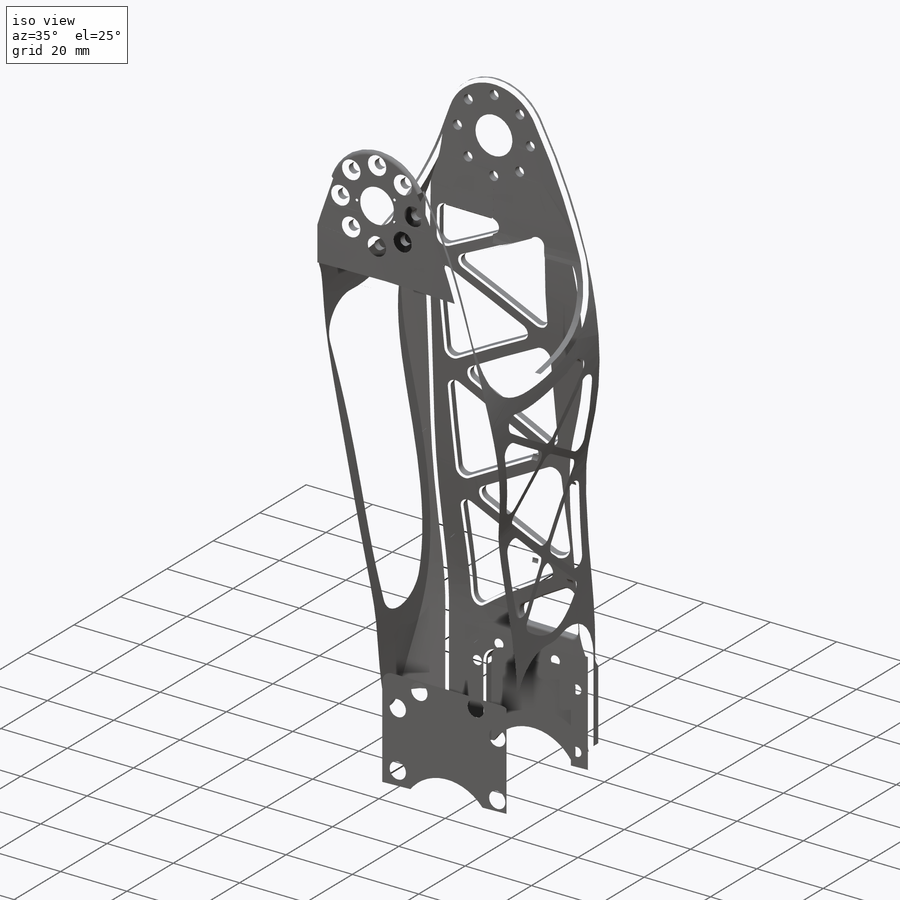
[diagram: iso view]
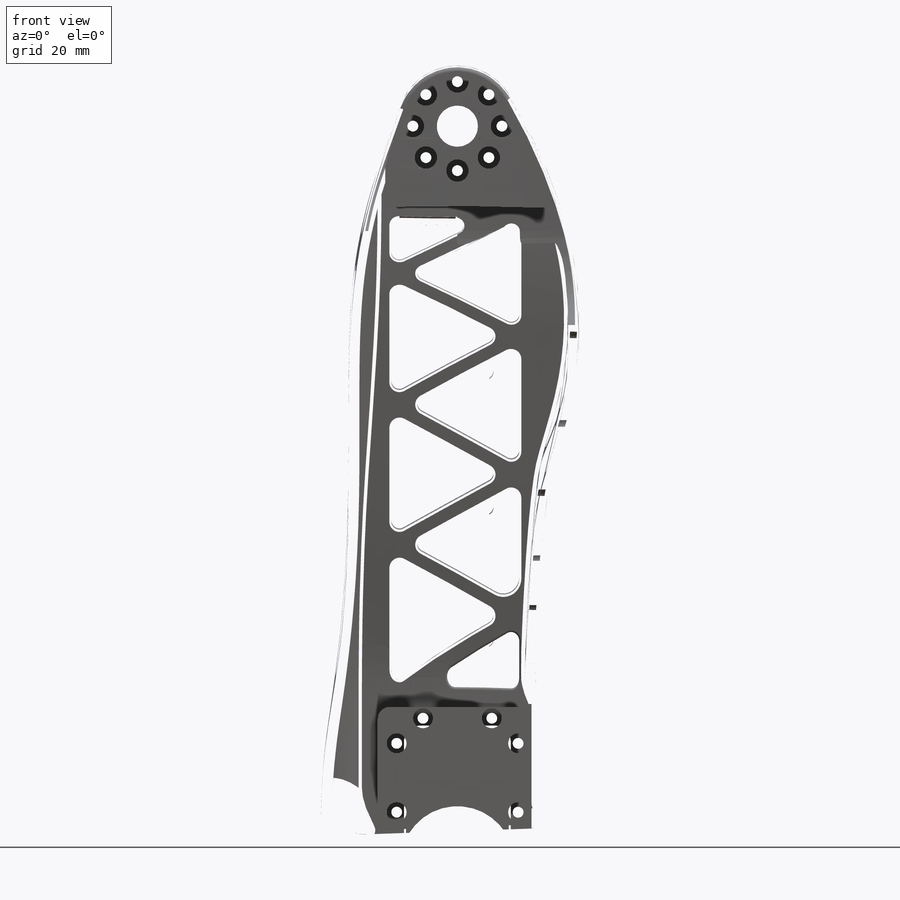
[diagram: front view]
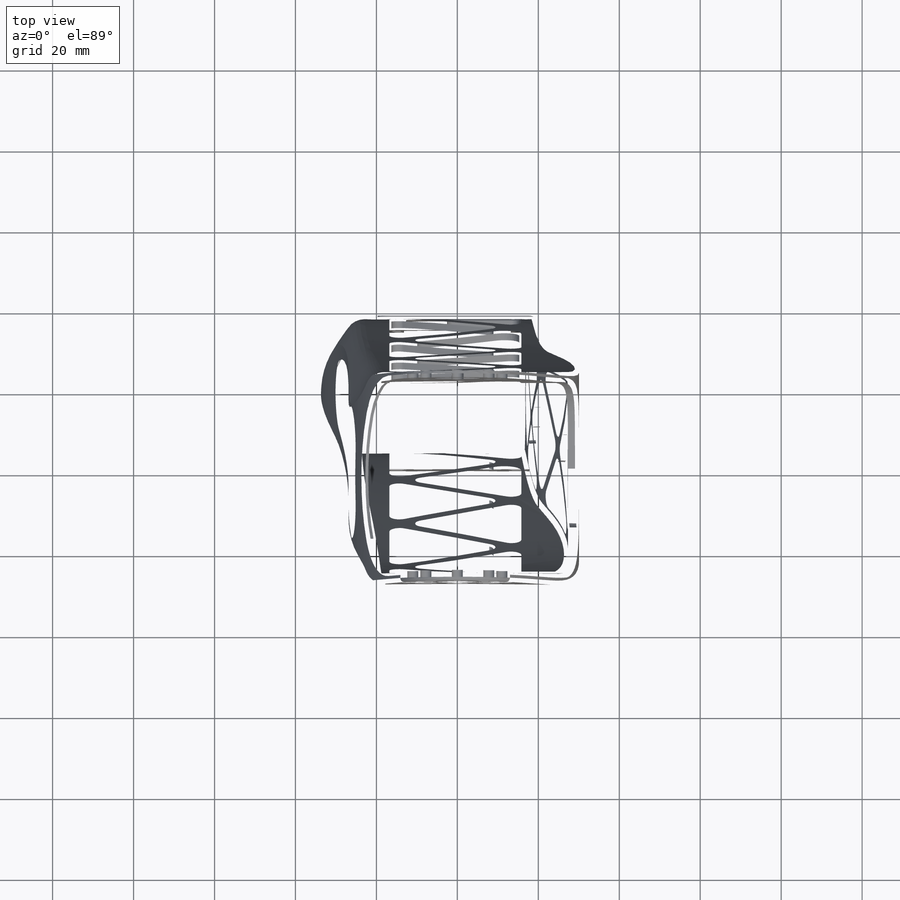
[diagram: top view]
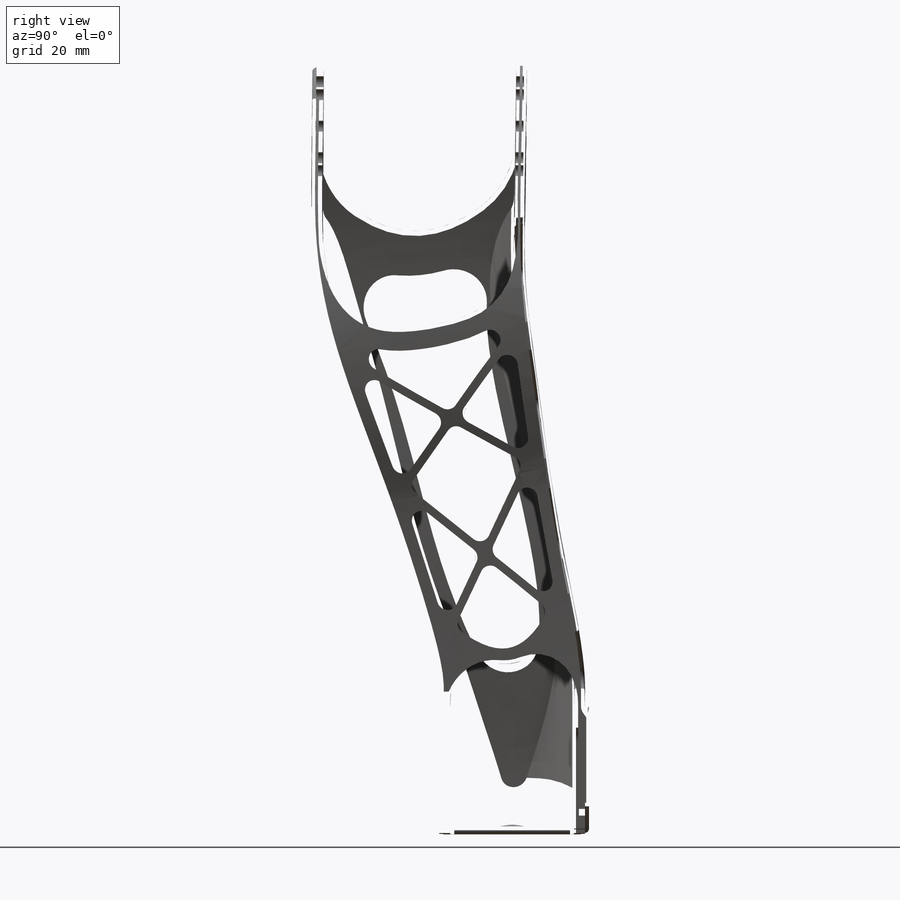
[diagram: right view]
SOLIDWORKS PART (.sldprt)
format: sldprt  version: not decoded by parser v0  size: 19,189,760 bytes
history: native  units: mm
features: sketch x50, fillet x35, cut_extrude x19, plane x12, extrude x8, mirror x8, chamfer x4, hole x4, delete_body x2, material x1, shell x1 (+15 scaffold rows collapsed; 6 parser-record rows omitted)
feature tree (165):
  scaffold x15  (default folders/planes/origin — collapsed)
  material  "Polyamide"
  plane  "Plan de face"
  plane  "Plan de dessus"
  plane  "Plan de droite"
  sketch  "Esquisse1"  dims[D1=28.0mm D2=22.0mm D3=50.6mm D4=36.6mm D5=182.0mm D6=36.6mm D7=61.1mm D8=12.1mm D9=13.0mm]
  sketch  "Esquisse3"  dims[D1=47.0mm D2=30.0mm D3=3.0mm D4=3.0mm D5=3.0mm D6=3.0mm]
  plane  "middle_knee_motor"
  sketch  "Esquisse25"  dims[c1.D4=13.0mm c1.D1=10.0mm c1.D2=6.0mm c1.D3=~12.879829mm c1.D5=~22.531218mm c1.D6=~8.485281mm c2.D6=45.0deg c2.D7=~8.485281mm c3.D7=25.0deg c3.D8=~9.065027mm c4.D8=~45.266046deg c4.D9=~22.531218mm c5.D9=35.0deg c5.D10=~50.845198mm c5.D11=~37.648417mm c5.D2=~7.746612mm c6.D2=~19.237367deg c6.D6=~6.188378mm c6.D7=10.0mm c6.D10=4.9mm c7.D10=~95.496587deg c7.D12=~52.522693mm]
  sketch  "hip_holes"  dims[c1.D1=22.0mm c1.D2=1.5mm c1.D5=22.0mm c1.D4=~5.691933mm c2.D4=360.0deg c2.D5=~2.870126mm c3.D5=22.5deg c3.D7=~9.353079mm c4.D7=60.0deg c4.D3=8.0 c4.D6=8.0]
  parser-record x6  (decoder bookkeeping rows leaked as tree rows — omitted from the tree; the rows remain in map.json)
  sketch  "Esquisse2"  dims[c1.D3=~13.063992mm c1.D2=14.0mm c2.D3=22.0mm c2.D4=~109.69506mm c2.D5=~166.437343mm c2.D6=22.0mm c2.D2=35.6mm c3.D2=55.0deg c3.D3=2.0mm c3.D4=~12.43196mm c4.D4=20.0deg c4.D5=13.3mm c4.D6=10.0mm c4.D7=41.6mm c5.D7=30.0deg c5.D8=24.3mm c5.D1=3.0mm c5.D9=1.0mm c5.D2=3.0mm c6.D1=2.0mm c6.D2=~6.854768mm c6.D3=30.0mm c6.D4=20.0deg c6.D5=30.0deg c6.D6=3.0mm c7.D2=1.0mm c7.D1=24.3mm c7.D6=~33.696926mm c7.D7=~3.420201mm c8.D7=158.0deg c8.D8=10.0mm c8.D1=3.0mm]
  extrude  "Boss.-Extru.1"  [1 undecoded]
  sketch  "Esquisse6"  dims[D1=3.0mm]
  cut_extrude  "Enlèv. mat.-Extru.1"  [1 undecoded]
  sketch  "Esquisse7"  dims[D3=35.5mm D1=3.0mm D2=3.0mm]
  sketch  "Esquisse8"  dims[D1=0.01mm]
  cut_extrude  "Enlèv. mat.-Extru.2"  [1 undecoded]
  shell  "Coque5"  Thickness=2.7mm
  sketch  "Esquisse26"  dims[D1=6.0mm D2=13.0mm]
  cut_extrude  "Enlèv. mat.-Extru.3"  [1 undecoded]
  sketch  "Esquisse35"  dims[c1.D3=~49.995456mm c1.D1=35.0mm c1.D2=56.0mm c2.D3=5.0deg c2.D4=11.0mm c2.D5=16.0mm c3.D4=10.0mm]
  cut_extrude  "Enlèv. mat.-Extru.8"  [1 undecoded]
  sketch  "Sketch10"
  cut_extrude  "Cut-Extrude3"  [1 undecoded]
  fillet  "Congé21"  Radius=20mm
  fillet  "Congé22"  Radius=5mm
  sketch  "Esquisse19"  dims[D3=3.0mm D1=24.4mm D2=5.6mm D4=0.5mm]
  fillet  "Congé24"  Radius=10mm
  cut_extrude  "Enlèv. mat.-Extru.4"  [1 undecoded]
  sketch  "Esquisse37"  dims[c1.D1=22.0mm c1.D5=3.0mm c1.D6=3.0mm c2.D1=3.0mm c2.D2=5.0mm c2.D3=~28.091931mm c3.D3=~0.089413deg c4.D3=6.0mm c4.D4=7.0mm]
  extrude  "Boss.-Extru.2"  Depth=3.7mm
  sketch  "Esquisse45"  dims[D1=4.0mm D4=6.0mm D2=39.0mm D3=2.7mm]
  sketch  "Esquisse58"  dims[c1.D1=15.0mm c1.D2=10.0mm c1.D3=12.0mm c2.D2=16.0mm]
  extrude  "Boss.-Extru.8"  Depth=2mm
  sketch  "Esquisse52"  dims[D1=0.0mm D2=3.0mm D3=8.0mm]
  extrude  "Boss.-Extru.5"  Depth=9mm
  sketch  "Esquisse53"
  extrude  "Boss.-Extru.6"  Depth=2.2mm
  sketch  "Esquisse54"  dims[D1=3.0mm D2=1.0mm]
  extrude  "Boss.-Extru.7"  Depth=1mm
  chamfer  "Chanfrein4"  Distance=5mm
  fillet  "Congé54"  Radius=10mm
  sketch  "Esquisse57"  dims[D1=~15.265709mm]
  cut_extrude  "Enlèv. mat.-Extru.11"  Depth=4.4mm
  fillet  "Congé61"  Radius=1.5mm
  fillet  "Congé62"  Radius=1.5mm
  fillet  "Congé63"  Radius=1mm
  fillet  "Congé64"  Radius=1mm
  fillet  "Congé65"  Radius=1mm
  fillet  "Congé66"  Radius=1mm
  chamfer  "Chanfrein5"  Distance=0.5mm Angle=45deg
  fillet  "Congé67"  Radius=0.5mm
  fillet  "Congé68"  Radius=0.3mm
  sketch  "Esquisse13"  dims[D1=2.0mm D2=3.0mm D3=2.0mm D4=3.0mm D7=2.0mm D5=2.0mm D6=2.0mm]
  cut_extrude  "Enlèv. mat.-Extru.5"  [1 undecoded]
  sketch  "Esquisse59"  dims[D1=2.0mm]
  cut_extrude  "Enlèv. mat.-Extru.12"  [1 undecoded]
  fillet  "Congé26"  Radius=2mm
  plane  "Plan1"  Offset=32mm
  fillet  "Congé37"  Radius=0.5mm
  sketch  "Esquisse44"  dims[D1=5.0mm]
  extrude  "Boss.-Extru.4"  Depth=0.5mm
  fillet  "Congé43"  Radius=2mm
  fillet  "Congé44"  Radius=2mm
  fillet  "Congé27"  Radius=1mm
  sketch  "Esquisse33"  dims[c1.D1=5.0mm c1.D2=5.0mm c1.D3=5.0mm c2.D1=10.0mm c2.D2=3.5mm c2.D3=8.0mm c2.D4=8.0mm c2.D5=8.0mm]
  cut_extrude  "Enlèv. mat.-Extru.6"  [1 undecoded]
  sketch  "Esquisse36"  dims[c1.D3=~39.437438mm c2.D3=60.0deg c2.D5=2.0mm c2.D6=~4.474644mm c3.D6=~154.416986deg c3.D1=7.0mm c3.D2=2.0mm c3.D3=2.0mm c4.D2=2.0mm c4.D1=5.0mm c4.D3=1.5mm c4.D4=1.5mm c4.D5=4.0mm]
  cut_extrude  "Enlèv. mat.-Extru.9"  [1 undecoded]
  fillet  "Congé29"  Radius=8mm
  fillet  "Congé31"  Radius=10mm
  fillet  "Congé83"  Radius=2mm
  fillet  "Congé32"  Radius=1mm
  fillet  "Congé84"  Radius=0.5mm
  fillet  "Congé39"  Radius=1mm
  fillet  "Congé41"  Radius=12mm
  fillet  "Congé42"  Radius=1mm
  fillet  "Congé77"  Radius=2mm
  fillet  "Congé78"  Radius=1mm
  fillet  "Fillet4"  Radius=0.7mm
  fillet  "Congé79"  Radius=1mm
  fillet  "Congé85"  Radius=1mm
  fillet  "Congé88"  Radius=1mm
  fillet  "Fillet2"  Radius=1mm
  fillet  "Fillet1"  Radius=1mm
  fillet  "Fillet3"  Radius=1mm
  sketch  "Esquisse65"  dims[D1=2.0mm D2=8.0mm D3=24.0mm D4=0.5mm]
  extrude  "Boss.-Extru.11"  Depth=2mm
  fillet  "Congé81"  Radius=1mm
  chamfer  "Chanfrein6"  Distance=0.5mm Angle=45deg
  mirror  "Symétrie2"
  sketch  "Esquisse70"
  sketch  "Esquisse69"  dims[c1.D4=30.0mm c1.D1=~101.097347mm c2.D1=6.0deg c2.D2=8.5mm c3.D2=90.0deg c4.D2=~79.906316mm c5.D2=90.0deg c6.D2=20.0mm c6.D3=8.0mm c6.D1=~176.640778mm c7.D1=6.0deg c7.D5=~18.54247mm c8.D1=194.7mm c9.D1=6.5deg c9.D5=~48.525062mm c10.D5=~12.593309deg c11.D5=~35.971228mm c11.D1=10.0mm c11.D2=10.0mm]
  sketch  "Esquisse34"  dims[D1=10.15mm]
  cut_extrude  "Enlèv. mat.-Extru.7"  [1 undecoded]
  plane  "Plan3"
  plane  "Plan4"  Offset=0.05mm
  sketch  "Sketch15"  dims[D1=~47.361994mm]
  plane  "hip_y_middle_plane"
  plane  "left_hip_y_holes_plane"  Offset=27mm
  plane  "right_hip_y_holes_plane"  Offset=27mm
  sketch  "Sketch1"  dims[D1=0.75mm D2=1.0mm]
  cut_extrude  "Cut-Extrude2"  Depth=2mm
  hole  "M2.5 Clearance Hole1"  Diameter=2.7mm Depth=10mm
  sketch  "Esquisse28"
  sketch  "Esquisse29"  dims[hole-wizard template sketch: 47 standard entries collapsed; hole parameters kept: c15.Hole Depth=10.0mm c15.D3=~14.816244mm c15.Drill Angle=118.0deg]
  sketch  "Sketch20"  dims[D1=5.5mm]
  cut_extrude  "left_M2.5_counterbore"  [1 undecoded]
  sketch  "Sketch21"  dims[D1=0.0mm D2=0.0mm D3=0.0mm D4=0.0mm D5=0.0mm D6=0.0mm D7=0.0mm D8=0.0mm]
  hole  "Surface-Offset4"  Diameter=1.9mm
  mirror  "Symétrie3"
  cut_extrude  "right_M2.5_counterbore"  [1 undecoded]
  delete_body  "Body-Delete2"
  sketch  "Esquisse14"  dims[c1.D6=2.0mm c1.D1=17.0mm c1.D2=17.0mm c1.D3=30.0mm c1.D4=4.0mm c1.D5=2.8mm c2.D6=6.8mm c2.D4=9.0mm]
  sketch  "Esquisse61"  dims[D1=5.5mm]
  cut_extrude  "Enlèv. mat.-Extru.13"  Depth=3mm
  sketch  "Esquisse79"  dims[D1=0.0mm D2=0.0mm]
  cut_extrude  "Enlèv. mat.-Extru.16"  Depth=3mm
  mirror  "CBORE for M2.5 Hex Socket Head Cap Screw5"
  sketch  "Esquisse81"
  sketch  "Esquisse82"  dims[hole-wizard template sketch: 27 standard entries collapsed; hole parameters kept: c8.Profondeur du perçage=9.0mm c8.Diamètre du chambrage=5.0mm c8.Profondeur du chambrage=2.65mm c8.Diamètre du fraisage milieu=3.0mm c8.D6=~5.388154mm c8.Angle du fraisage milieu=90.0deg c8.D7=~14.816244mm c8.Angle de pointe=118.0deg]
  mirror  "CBORE for M2 Hex Socket Head Cap Screw2"
  sketch  "Sketch8"
  sketch  "Sketch7"  dims[hole-wizard template sketch: 42 standard entries collapsed; hole parameters kept: c12.Thru Hole Depth=~69.116056mm c12.C'Bore Dia.=4.4mm c12.C'Bore Depth=2.5mm c12.Mid C'Sink Dia.=2.25mm c12.D6=~5.388154mm c12.Mid C'Sink Angle=90.0deg]
  mirror  "CBORE for M2.5 Hex Socket Head Cap Screw4"
  sketch  "Sketch3"
  sketch  "Sketch2"  dims[hole-wizard template sketch: 42 standard entries collapsed; hole parameters kept: c12.Thru Hole Depth=3.7mm c12.C'Bore Dia.=4.9mm c12.C'Bore Depth=2.6mm c12.Mid C'Sink Dia.=2.75mm c12.D6=~5.388154mm c12.Mid C'Sink Angle=90.0deg]
  mirror  "CBORE for M2.5 Hex Socket Head Cap Screw10"
  sketch  "Sketch6"
  sketch  "Sketch5"  dims[hole-wizard template sketch: 42 standard entries collapsed; hole parameters kept: c12.Thru Hole Depth=3.7mm c12.C'Bore Dia.=4.9mm c12.C'Bore Depth=2.5mm c12.Mid C'Sink Dia.=2.75mm c12.D6=~5.388154mm c12.Mid C'Sink Angle=90.0deg]
  mirror  "CBORE for M2.5 Hex Socket Head Cap Screw8"
  sketch  "Sketch14"
  sketch  "Sketch13"  dims[hole-wizard template sketch: 42 standard entries collapsed; hole parameters kept: c12.Thru Hole Depth=4.3mm c12.C'Bore Dia.=5.0mm c12.C'Bore Depth=2.65mm c12.Mid C'Sink Dia.=2.75mm c12.D6=~5.388154mm c12.Mid C'Sink Angle=90.0deg]
  chamfer  "Chanfrein7"  Distance=0.5mm Angle=45deg
  plane  "middle_r_hip_motor"
  hole  "Surface-Offset1"  Diameter=2.2mm
  sketch  "Sketch17"  dims[D1=17.0mm D2=2.8mm D3=18.5mm]
  cut_extrude  "Poppy_trademark"  [1 undecoded]
  mirror  "Mirror1"
  delete_body  "Body-Delete1"
  sketch  "center_position_left"
  plane  "middle_l_hip_motor"
  hole  "Surface-Offset2"  Diameter=2.2mm
  sketch  "Sketch18"  dims[D1=17.0mm D2=18.5mm D3=2.8mm]
  cut_extrude  "Poppy_trademark_left"  [1 undecoded]
decode coverage: 95 of 131 modeling features carry decoded parameters
note: ~ marks probable driven/reference dimensions
note: 16 parameter values undecoded
summary: no parameter record found for 16 features
note: suppression state not decoded; provenance and decode notes live in map.json
